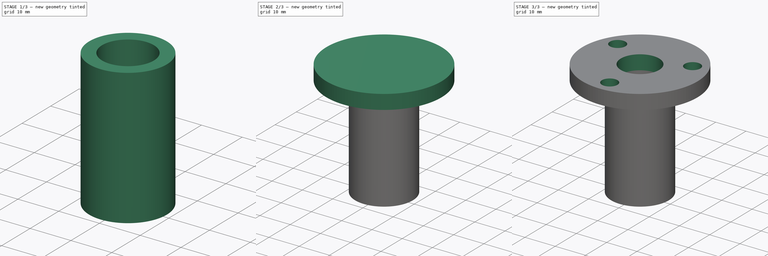
[diagram: build sequence overview — one tinted view per stage of 3, left to right]
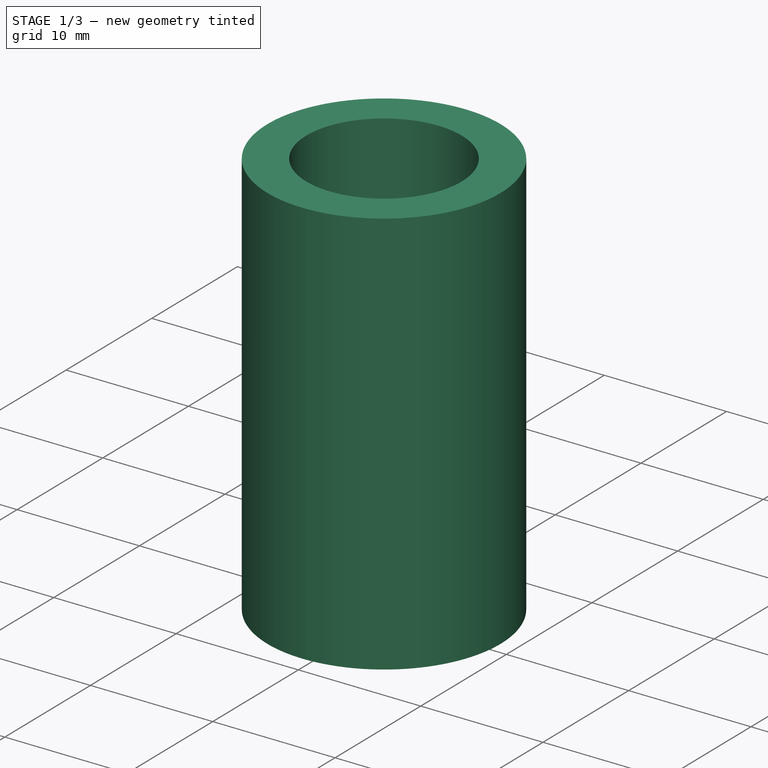
[diagram: stage 1 of 3 — iso view after this stage's code; geometry added in this stage tinted green]
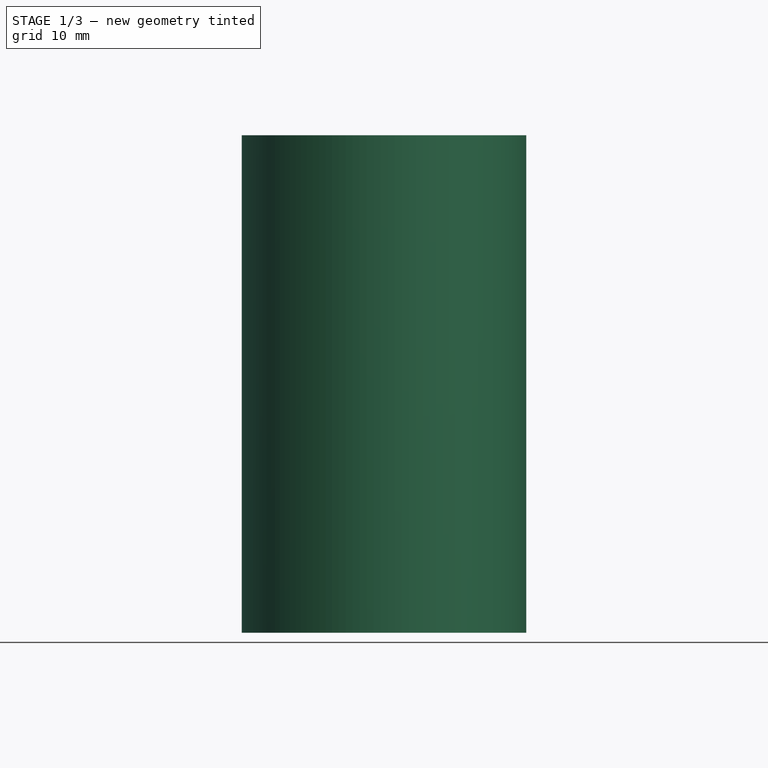
[diagram: stage 1 of 3 — front view after this stage's code; geometry added in this stage tinted green]
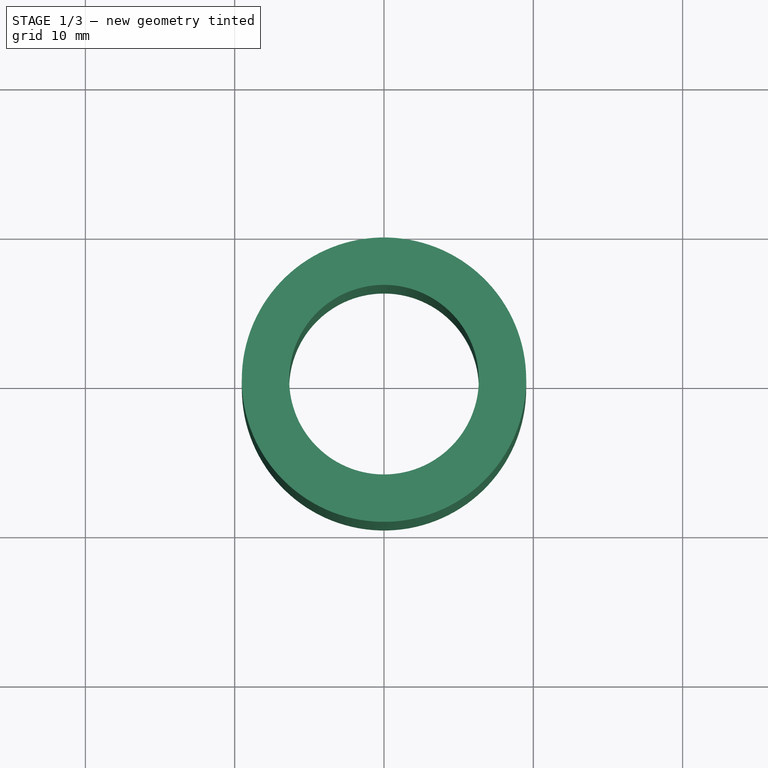
[diagram: stage 1 of 3 — top view after this stage's code; geometry added in this stage tinted green]
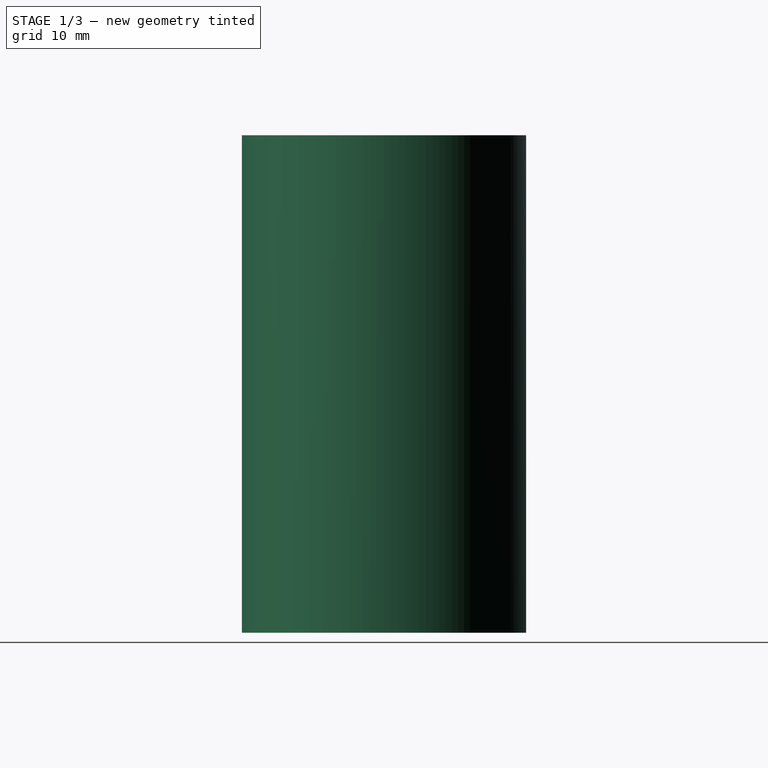
[diagram: stage 1 of 3 — right view after this stage's code; geometry added in this stage tinted green]
FCSTD DOCUMENT  (FreeCAD 0.14R3702 (Git))
Label: lead-screw-flange
License: CC-BY 3.0
LicenseURL: http://creativecommons.org/licenses/by/3.0/
objects: Part::Cylinder×2, Sketcher::SketchObject×2, PartDesign::Pocket×2, Part::MultiFuse×1
note: 9 computed .brp shape members not serialized (recipe doc carries the construction recipe); baked Part::Feature solids carry a one-line shape summary decoded from their .brp

FEATURE [Part::Cylinder] Cylinder
  Angle = 360
  Height = 33.3248
  Radius = 9.525
FEATURE [Sketcher::SketchObject] Sketch001
  Placement = pos=(0,0,0) rot=(1,0,0;3.14159rad)
  Support = -> Cylinder [Face3]
  sketch-geometry (1):
    g0: Circle CenterX=0 CenterY=0 CenterZ=0 NormalX=0 NormalY=0 NormalZ=1 Radius=6.35
  constraints (2):
    c: Coincident(g0,g-1)
    c: Radius(g0) = 6.35
FEATURE [PartDesign::Pocket] Pocket001
  Length = 5
  Sketch = -> Sketch001
  Type = 1
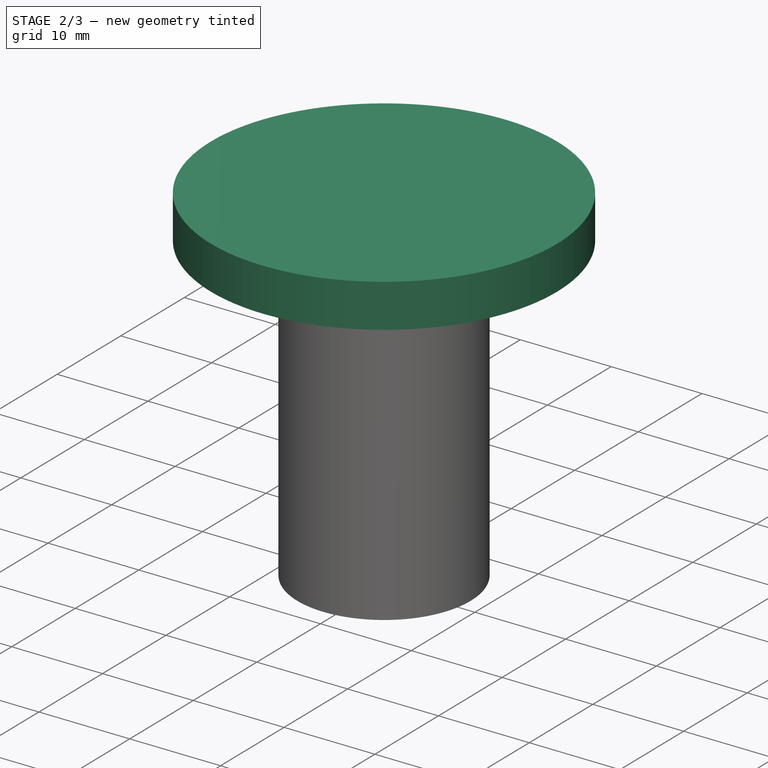
[diagram: stage 2 of 3 — iso view after this stage's code; geometry added in this stage tinted green]
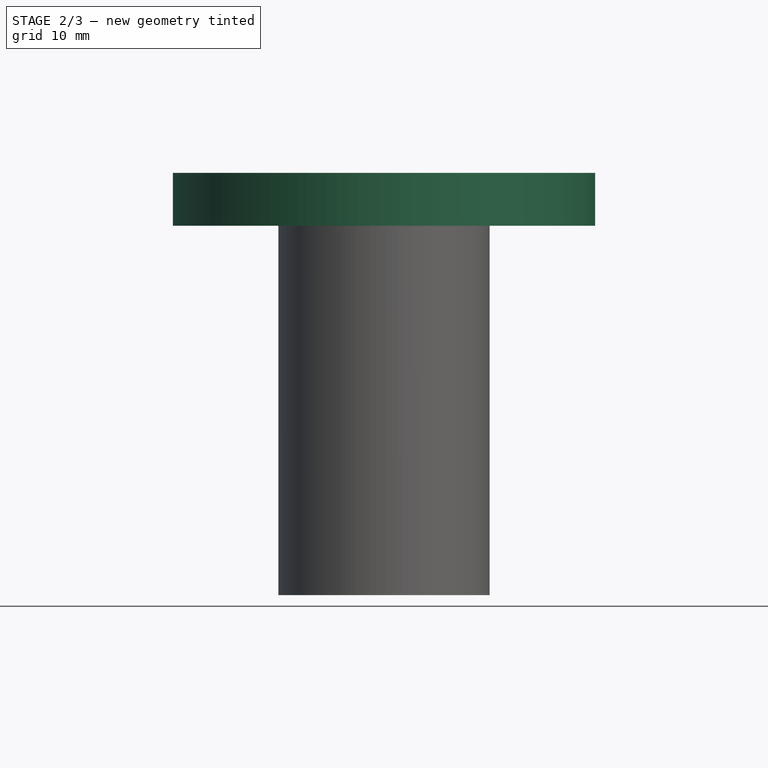
[diagram: stage 2 of 3 — front view after this stage's code; geometry added in this stage tinted green]
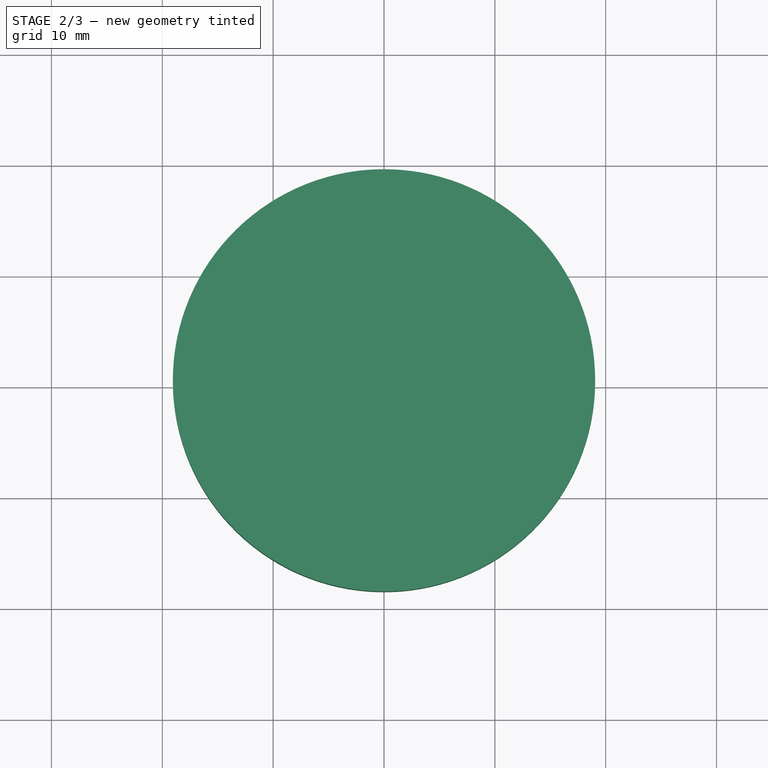
[diagram: stage 2 of 3 — top view after this stage's code; geometry added in this stage tinted green]
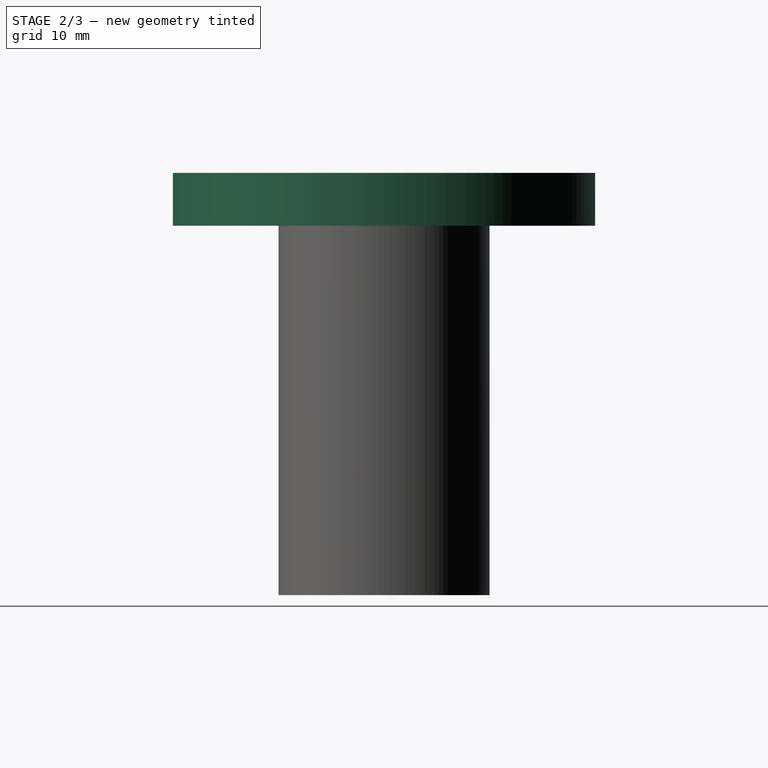
[diagram: stage 2 of 3 — right view after this stage's code; geometry added in this stage tinted green]
FEATURE [Part::Cylinder] Cylinder001
  Angle = 360
  Height = 4.7752
  Placement = pos=(0,0,33.3248) rot=(0,0,1;0rad)
  Radius = 19.05
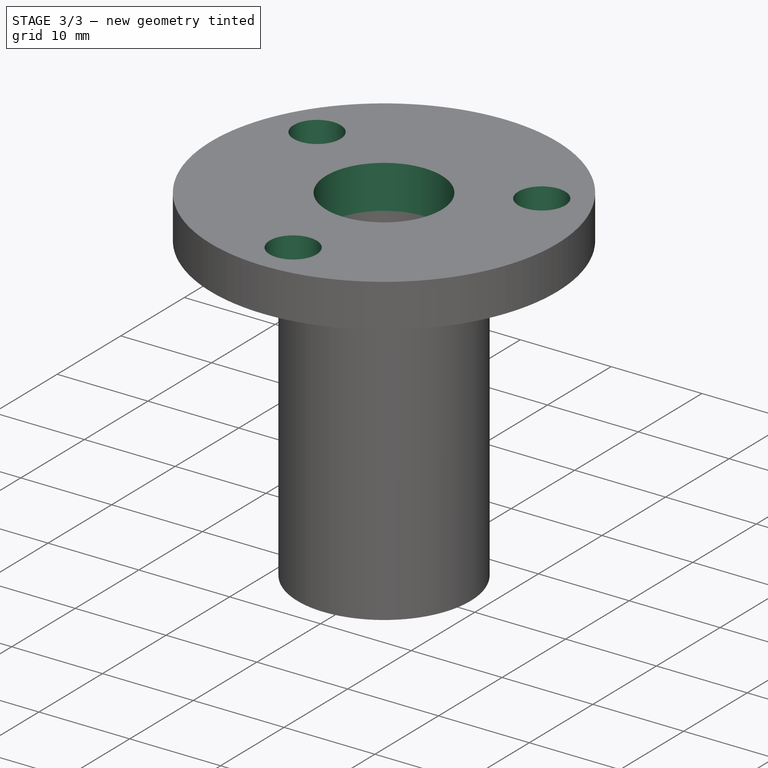
[diagram: stage 3 of 3 — iso view after this stage's code; geometry added in this stage tinted green]
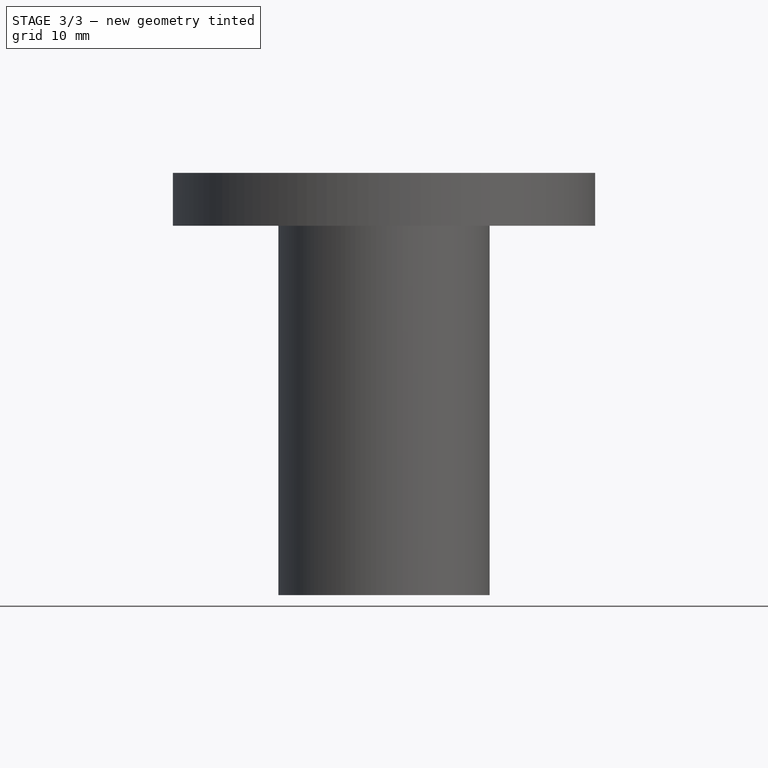
[diagram: stage 3 of 3 — front view after this stage's code; geometry added in this stage tinted green]
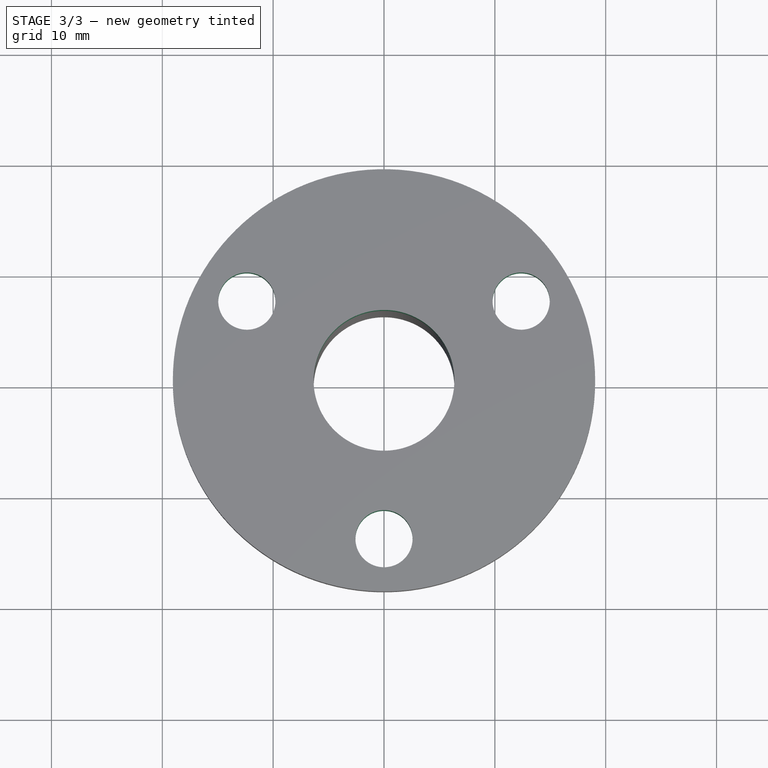
[diagram: stage 3 of 3 — top view after this stage's code; geometry added in this stage tinted green]
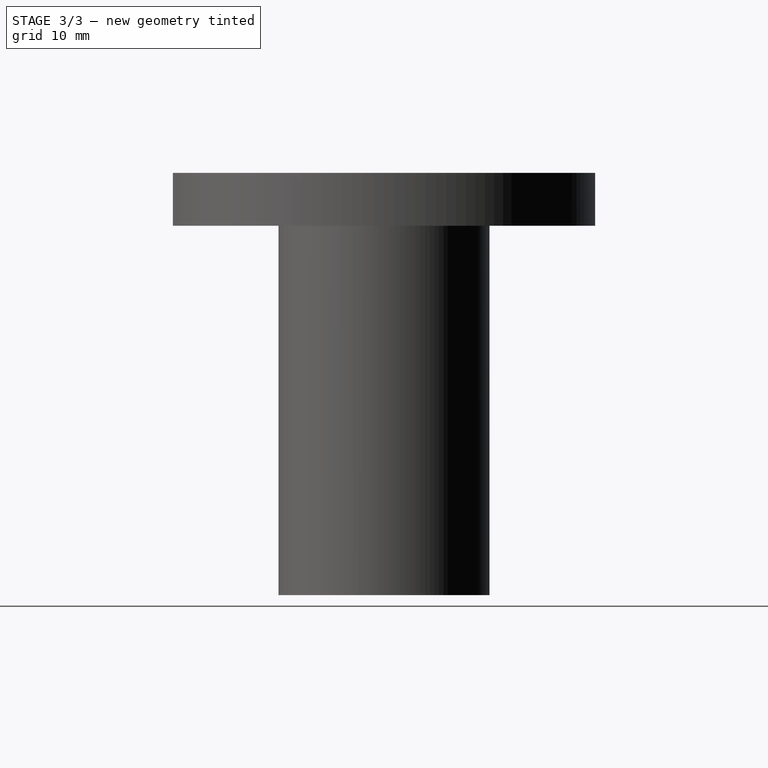
[diagram: stage 3 of 3 — right view after this stage's code; geometry added in this stage tinted green]
FEATURE [Sketcher::SketchObject] Sketch
  Placement = pos=(0,0,38.1) rot=(0,0,1;0rad)
  Support = -> Cylinder001 [Face2]
  sketch-geometry (8):
    g0: Circle [constr] CenterX=0 CenterY=0 CenterZ=0 NormalX=0 NormalY=0 NormalZ=1 Radius=14.2875
    g1: Circle CenterX=-12.373 CenterY=7.14431 CenterZ=0 NormalX=0 NormalY=0 NormalZ=1 Radius=2.5781
    g2: Circle CenterX=0 CenterY=-14.2875 CenterZ=0 NormalX=0 NormalY=0 NormalZ=1 Radius=2.5781
    g3: Circle CenterX=12.373 CenterY=7.14431 CenterZ=0 NormalX=0 NormalY=0 NormalZ=1 Radius=2.5781
    g4: LineSegment [constr] StartX=0 StartY=-14.2875 StartZ=0 EndX=12.373 EndY=7.14431 EndZ=0
    g5: LineSegment [constr] StartX=12.373 StartY=7.14431 StartZ=0 EndX=-12.373 EndY=7.14431 EndZ=0
    g6: LineSegment [constr] StartX=0 StartY=-14.2875 StartZ=0 EndX=-12.373 EndY=7.14431 EndZ=0
    g7: Circle CenterX=0 CenterY=0 CenterZ=0 NormalX=0 NormalY=0 NormalZ=1 Radius=6.35
  constraints (19):
    c: Coincident(g0,g-1)
    c: Radius(g0) = 14.2875
    c: PointOnObject(g6,g0)
    c: Coincident(g6,g4)
    c: PointOnObject(g5,g0)
    c: Coincident(g4,g5)
    c: PointOnObject(g6,g0)
    c: Coincident(g5,g6)
    c: Distance(g6) = 24.747
    c: Distance(g4) = 24.747
    c: PointOnObject(g4,g-2)
    c: Coincident(g1,g5)
    c: Coincident(g2,g4)
    c: Coincident(g3,g4)
    c: Radius(g1) = 2.5781
    c: Equal(g1,g2)
    c: Equal(g2,g3)
    c: Coincident(g7,g-1)
    c: Radius(g7) = 6.35
FEATURE [PartDesign::Pocket] Pocket
  Length = 20
  Placement = pos=(0,0,33.3248) rot=(0,0,1;0rad)
  Sketch = -> Sketch
  Type = 1
FEATURE [Part::MultiFuse] Fusion  label="part"
  Shapes = -> [Pocket,Pocket001]
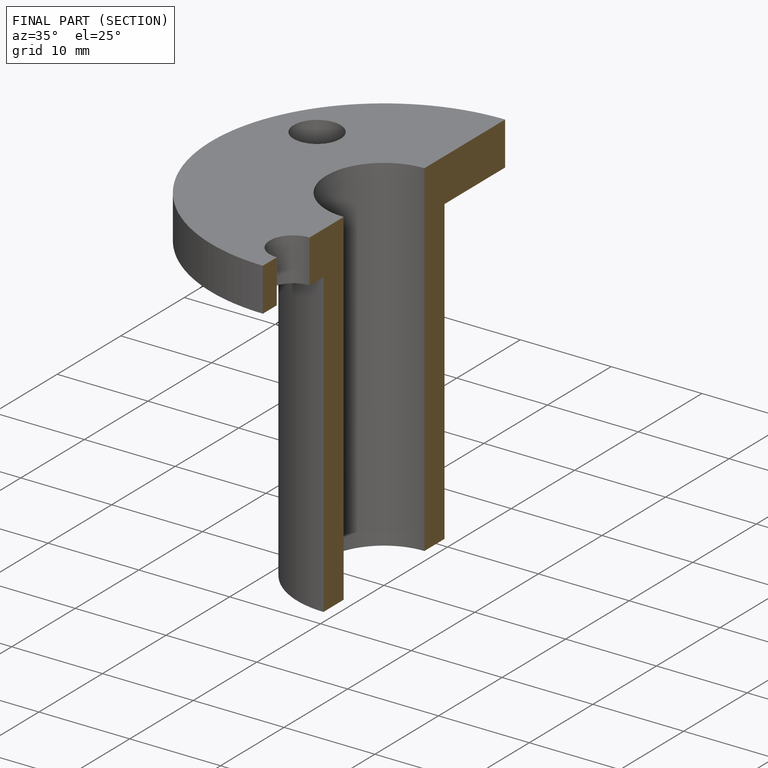
[diagram: finished part — half-section view (interior)]
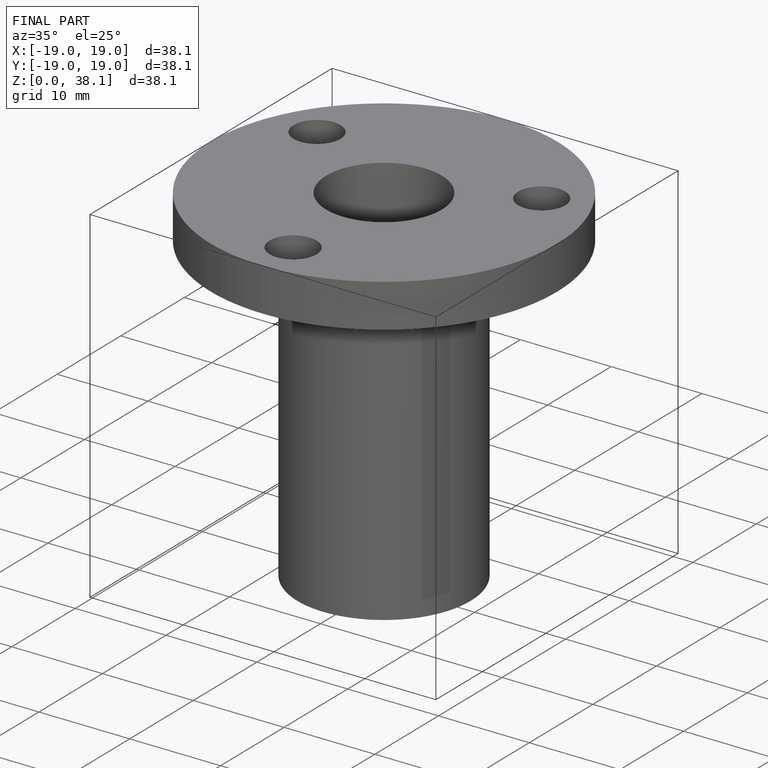
[diagram: finished part — iso view with bounding-box wireframe]
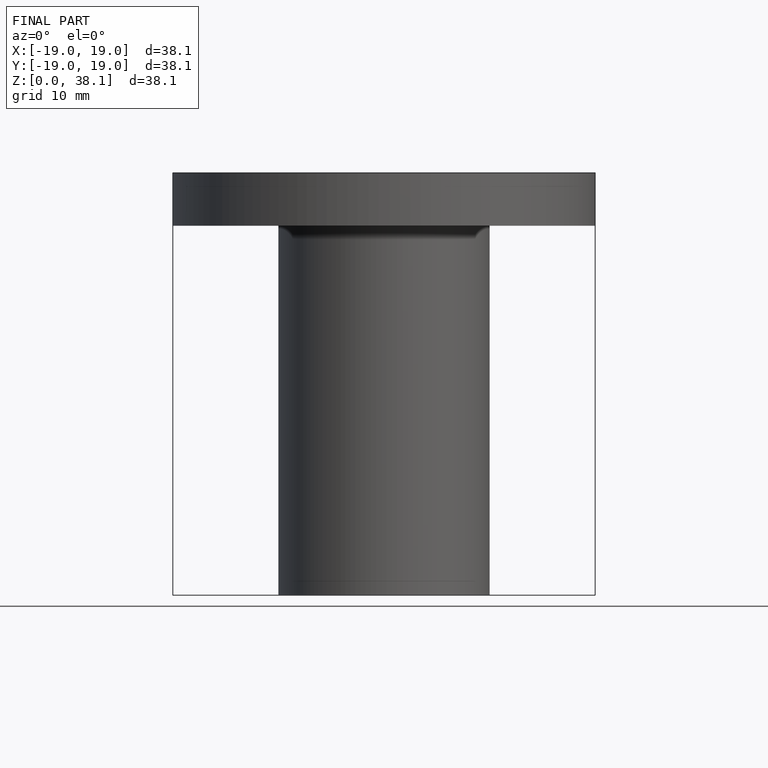
[diagram: finished part — front view with bounding-box wireframe]
